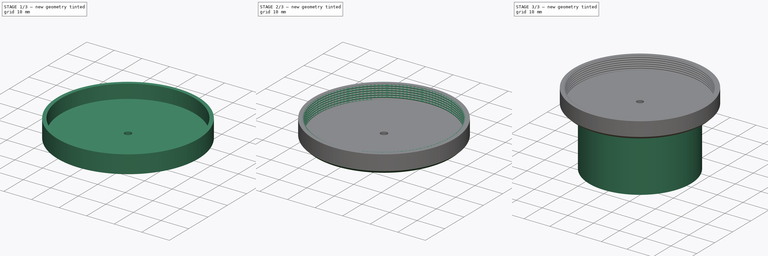
[diagram: build sequence overview — one tinted view per stage of 3, left to right]
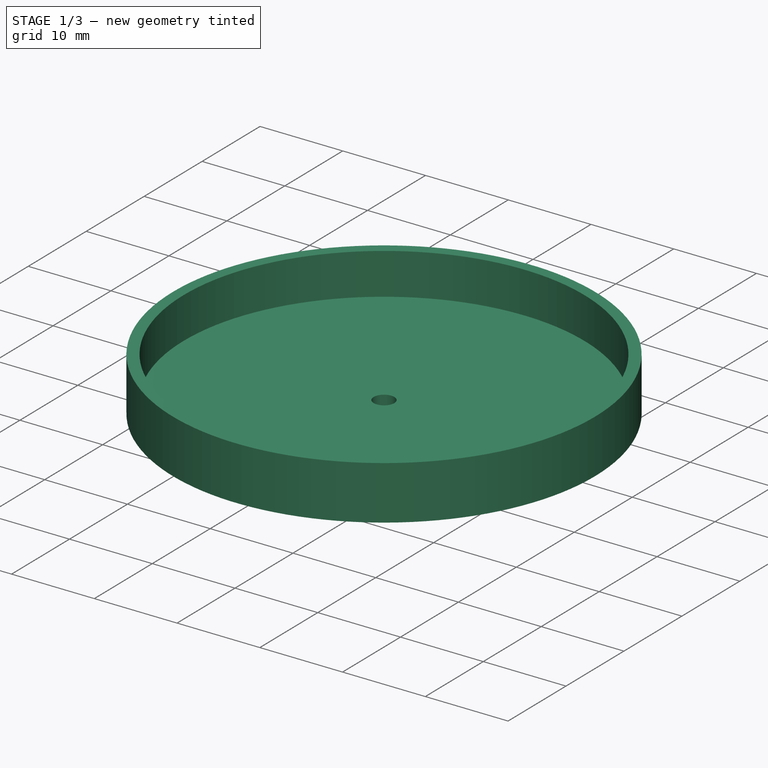
[diagram: stage 1 of 3 — iso view after this stage's code; geometry added in this stage tinted green]
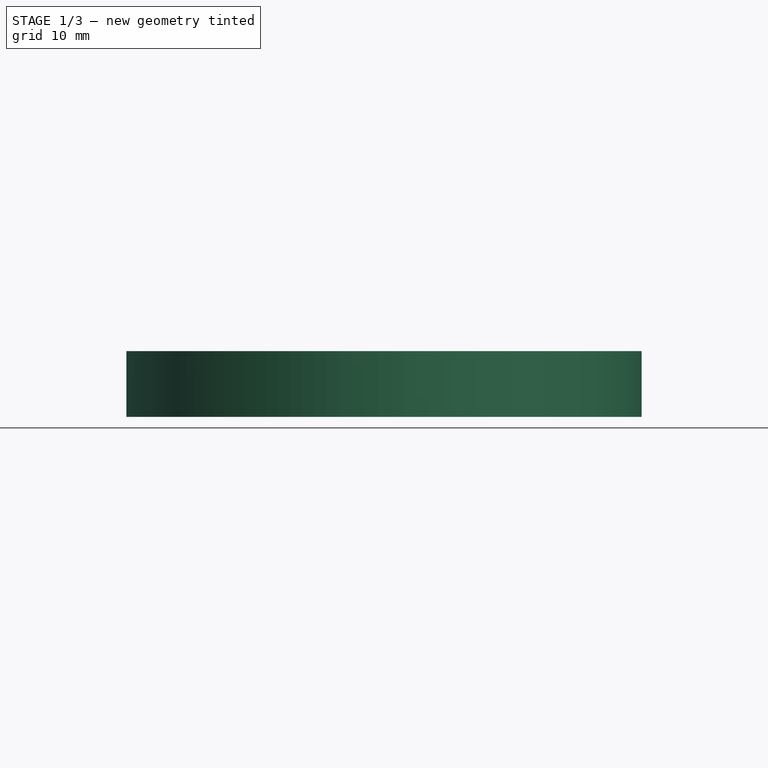
[diagram: stage 1 of 3 — front view after this stage's code; geometry added in this stage tinted green]
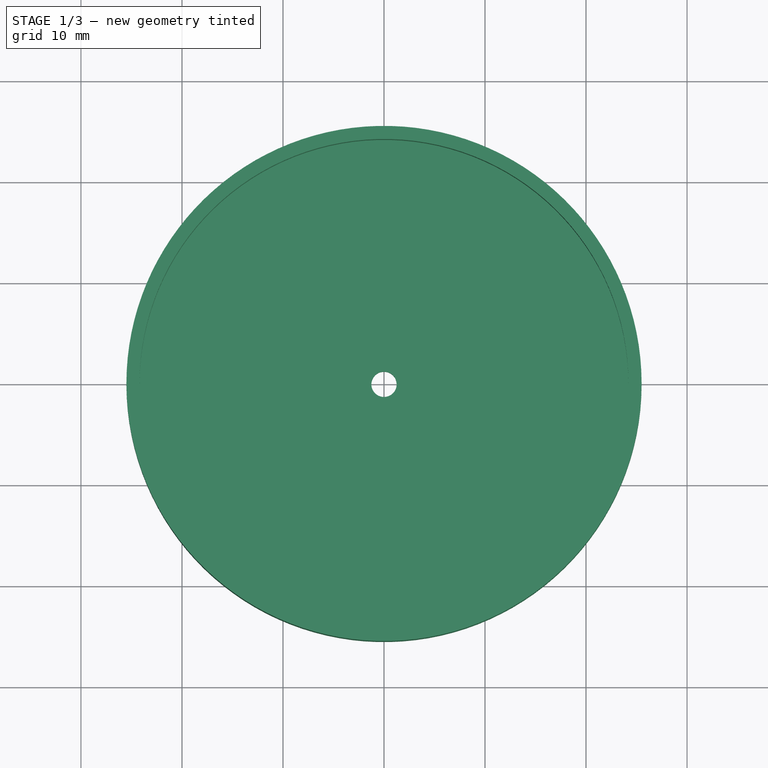
[diagram: stage 1 of 3 — top view after this stage's code; geometry added in this stage tinted green]
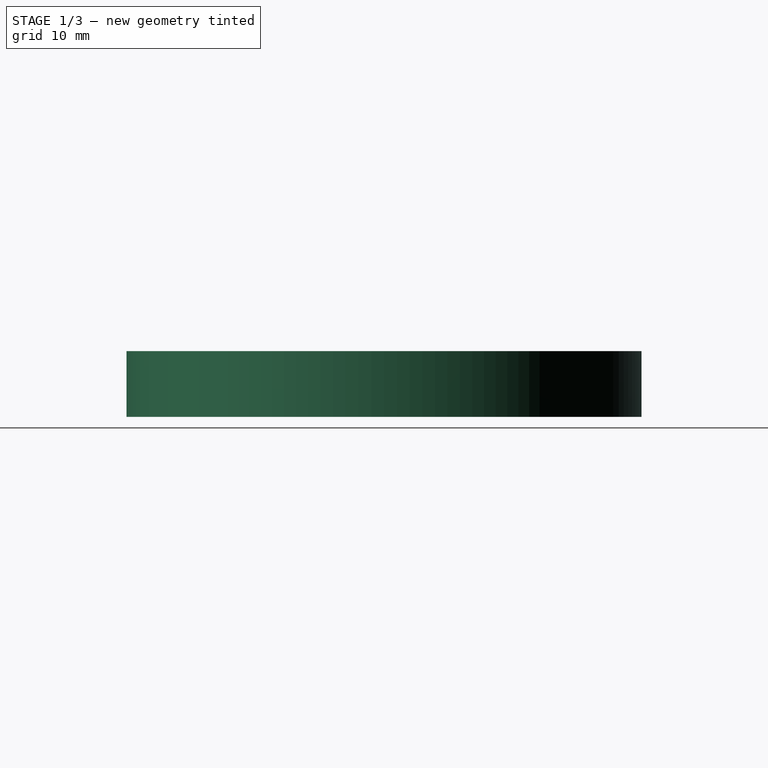
[diagram: stage 1 of 3 — right view after this stage's code; geometry added in this stage tinted green]
FCSTD DOCUMENT  (FreeCAD 0.21R33771 (Git))
Label: M48CollimationCapLens
License: All rights reserved
LicenseURL: https://en.wikipedia.org/wiki/All_rights_reserved
objects: Sketcher::SketchObject×5, PartDesign::Pad×2, PartDesign::Pocket×2, PartDesign::Chamfer×2, Spreadsheet::Sheet×1, PartDesign::AdditiveHelix×1, PartDesign::Body×1
note: 20 computed .brp shape members not serialized (recipe doc carries the construction recipe); baked Part::Feature solids carry a one-line shape summary decoded from their .brp

FEATURE [Sketcher::SketchObject] Sketch
  FullyConstrained = true
  MapMode = 5
  Support = -> [XY_Plane]
  expr: Constraints[1] = <<Parameters>>.Diameter + 2 * <<Parameters>>.Thickness
  expr: Constraints[5] = <<Parameters>>.Pinhole
  sketch-geometry (2):
    g0: Circle CenterX=0 CenterY=0 CenterZ=0 NormalX=0 NormalY=0 NormalZ=1 AngleXU=0 Radius=25.5
    g1: Circle CenterX=0 CenterY=0 CenterZ=0 NormalX=0 NormalY=0 NormalZ=1 AngleXU=0 Radius=1.25
  constraints (6):
    c: Coincident(g0,g-1)
    c: Diameter(g0) = 51
    c: PointOnObject(g1,g-1)
    c: PointOnObject(g1,g-1)
    c: PointOnObject(g1,g-2)
    c: Diameter(g1) = 2.5
FEATURE [Spreadsheet::Sheet] Spreadsheet  label="Parameters"
  cells = A2='Thread Diameter; B2(Diameter)=48; A3='Tolerance; B3(Tolerance)=0.4; A4='Thread Pitch; B4(Pitch)=0.75; A5='Thread Length; B5(Length)=5; A6='Thickness; B6(Thickness)=1.5; A7='Pinhole; B7(Pinhole)=2.5; A8='Lens Diameter; B8(LensDiameter)=36.5; A9='Port Depth; B9(Depth)=22
FEATURE [PartDesign::Pad] Pad
  Direction = (0,0,1)
  Length = 6.5
  Length2 = 10
  Profile = -> Sketch
  ReferenceAxis = -> Sketch [N_Axis]
  Reversed = true
  Type = 0
  expr: Length = <<Parameters>>.Length + <<Parameters>>.Thickness
FEATURE [Sketcher::SketchObject] Sketch001
  FullyConstrained = true
  MapMode = 5
  Support = -> [XY_Plane]
  expr: Constraints[1] = <<Parameters>>.Diameter + <<Parameters>>.Tolerance
  sketch-geometry (1):
    g0: Circle CenterX=0 CenterY=0 CenterZ=0 NormalX=0 NormalY=0 NormalZ=1 AngleXU=0 Radius=24.2
  constraints (2):
    c: Coincident(g0,g-1)
    c: Diameter(g0) = 48.4
FEATURE [PartDesign::Pocket] Pocket
  BaseFeature = -> Pad
  Direction = (0,0,-1)
  Length = 5
  Length2 = 5
  Profile = -> Sketch001
  ReferenceAxis = -> Sketch001 [N_Axis]
  Type = 0
  expr: Length = <<Parameters>>.Length
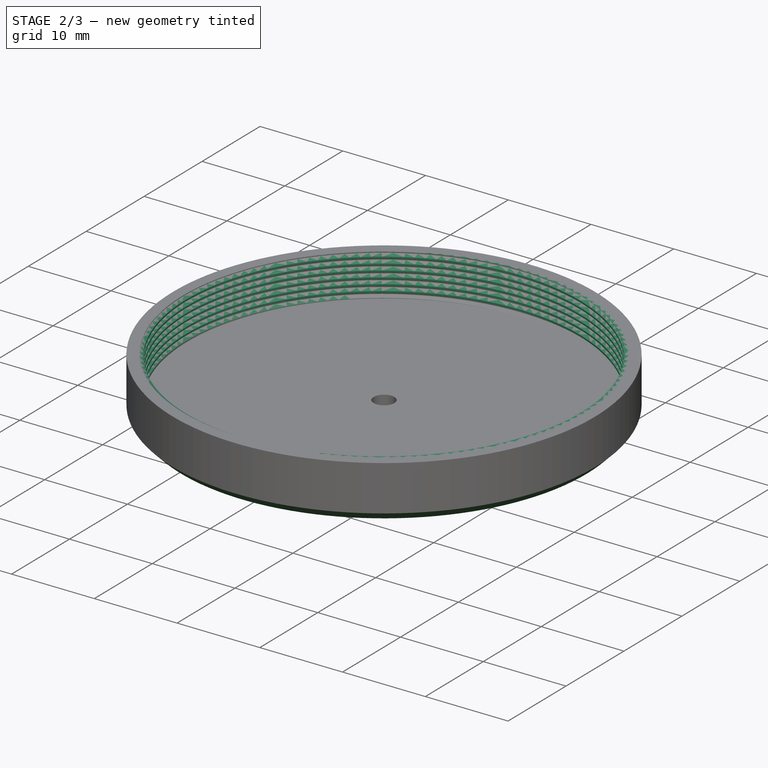
[diagram: stage 2 of 3 — iso view after this stage's code; geometry added in this stage tinted green]
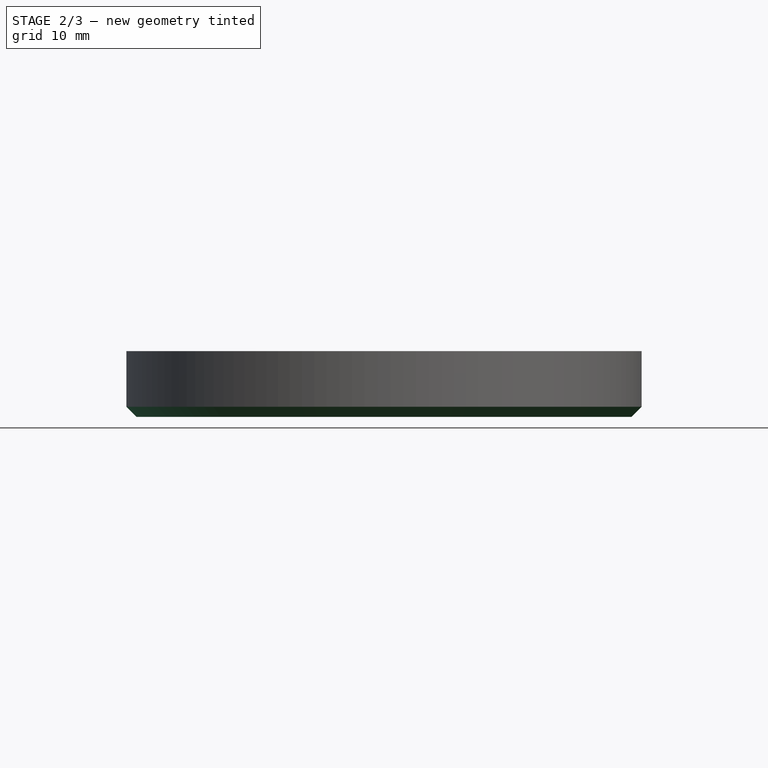
[diagram: stage 2 of 3 — front view after this stage's code; geometry added in this stage tinted green]
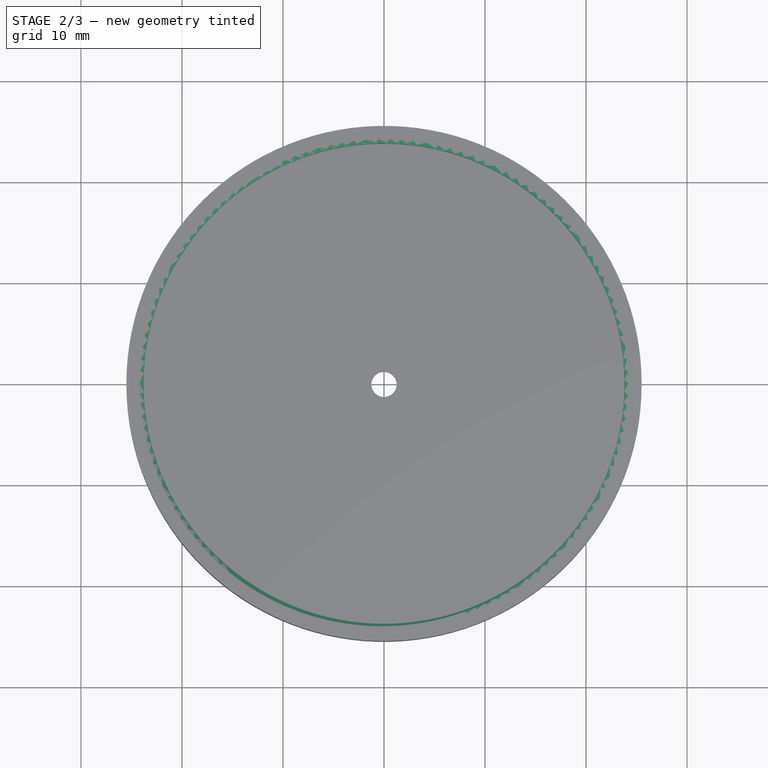
[diagram: stage 2 of 3 — top view after this stage's code; geometry added in this stage tinted green]
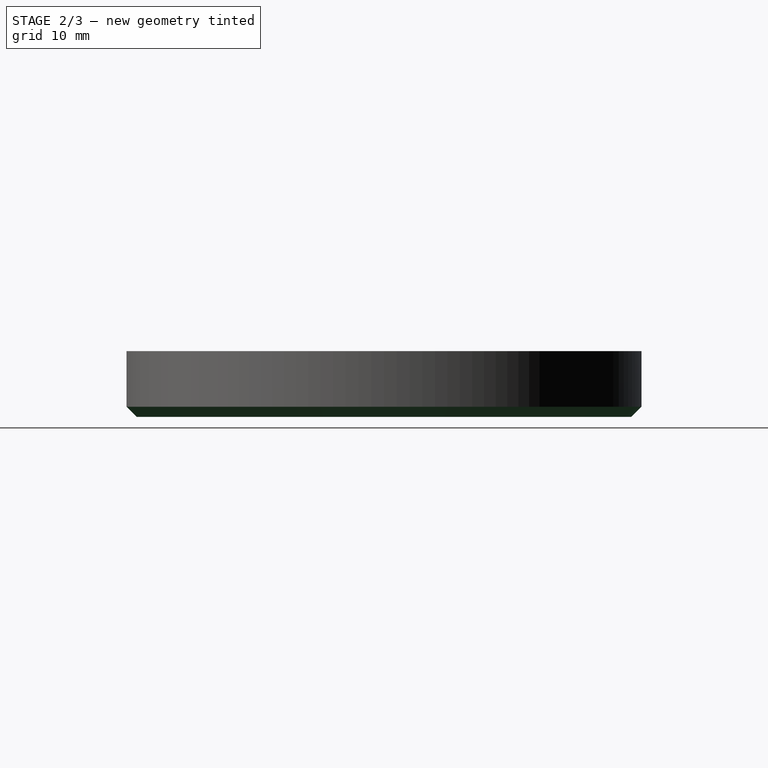
[diagram: stage 2 of 3 — right view after this stage's code; geometry added in this stage tinted green]
FEATURE [Sketcher::SketchObject] Sketch002
  FullyConstrained = true
  MapMode = 5
  Placement = pos=(0,0,0) rot=(1,0,0;1.5708rad)
  Support = -> [XZ_Plane]
  expr: Constraints[11] = (<<Parameters>>.Diameter + <<Parameters>>.Tolerance) / 2
  expr: Constraints[8] = <<Parameters>>.Pitch / 4
  expr: Constraints[9] = 0.866205 * <<Parameters>>.Pitch * 5 / 8
  sketch-geometry (4):
    g0: LineSegment StartX=-24.2 StartY=0 StartZ=0 EndX=-23.794 EndY=0.234424 EndZ=0
    g1: LineSegment StartX=-23.794 StartY=0.234424 StartZ=0 EndX=-23.794 EndY=0.421924 EndZ=0
    g2: LineSegment StartX=-23.794 StartY=0.421924 StartZ=0 EndX=-24.2 EndY=0.656347 EndZ=0
    g3: LineSegment StartX=-24.2 StartY=0.656347 StartZ=0 EndX=-24.2 EndY=0 EndZ=0
  constraints (12):
    c: Coincident(g0,g1)
    c: Vertical(g1)
    c: Coincident(g1,g2)
    c: Coincident(g2,g3)
    c: Coincident(g3,g0)
    c: Vertical(g3)
    c: Angle(g0,g3) = 1.0472
    c: Angle(g3,g2) = 1.0472
    c: DistanceY(g0,g1) = 0.1875
    c: DistanceX(g2,g1) = 0.406034
    c: Horizontal(g-1,g0)
    c: DistanceX(g0,g-1) = 24.2
FEATURE [PartDesign::AdditiveHelix] AdditiveHelix
  Angle = 0
  Axis = (0,-2e-16,1)
  Base = (0,0,0)
  BaseFeature = -> Pocket
  Growth = 0
  HasBeenEdited = true
  Height = 6.5
  LeftHanded = false
  Mode = 0
  Outside = false
  Pitch = 0.75
  Profile = -> Sketch002
  ReferenceAxis = -> Sketch002 [V_Axis]
  Reversed = true
  Turns = 8.66667
  expr: Height = <<Pad>>.Length
  expr: Pitch = <<Parameters>>.Pitch
FEATURE [Sketcher::SketchObject] Sketch003
  ExternalGeometry = -> [AdditiveHelix]
  FullyConstrained = true
  MapMode = 5
  Support = -> [XY_Plane]
  sketch-geometry (1):
    g0: Circle CenterX=0 CenterY=0 CenterZ=0 NormalX=0 NormalY=0 NormalZ=1 AngleXU=0 Radius=25.5
  constraints (2):
    c: Coincident(g0,g-3)
    c: Equal(g-3,g0)
FEATURE [PartDesign::Pocket] Pocket001
  BaseFeature = -> AdditiveHelix
  Direction = (0,0,-1)
  Length = 5
  Length2 = 5
  Profile = -> Sketch003
  ReferenceAxis = -> Sketch003 [N_Axis]
  Reversed = true
  Type = 0
FEATURE [PartDesign::Chamfer] Chamfer
  Angle = 45
  Base = -> Pocket001 [Edge3]
  BaseFeature = -> Pocket001
  ChamferType = 0
  FlipDirection = false
  Size = 1
  Size2 = 1
  SupportTransform = false
  UseAllEdges = false
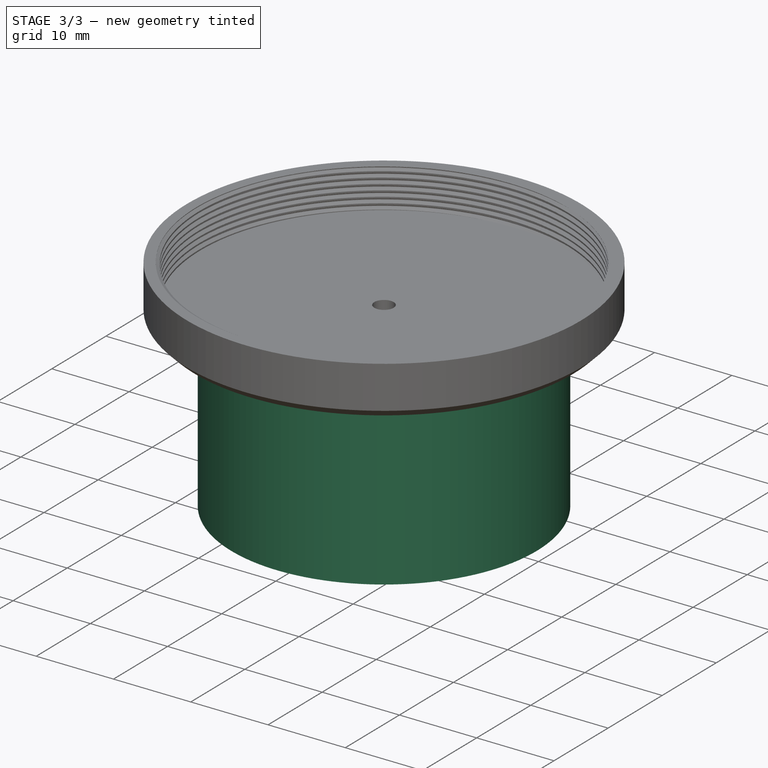
[diagram: stage 3 of 3 — iso view after this stage's code; geometry added in this stage tinted green]
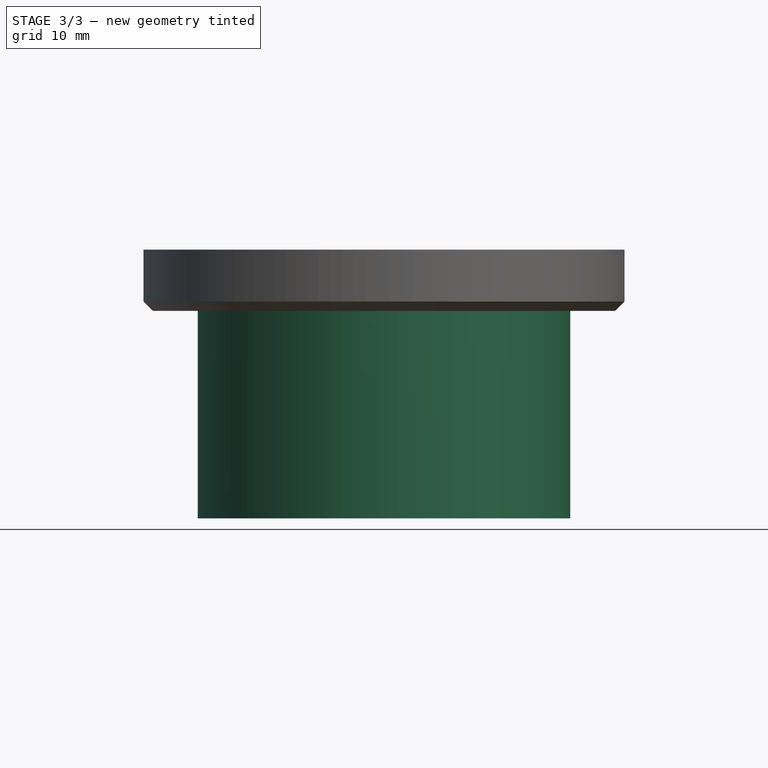
[diagram: stage 3 of 3 — front view after this stage's code; geometry added in this stage tinted green]
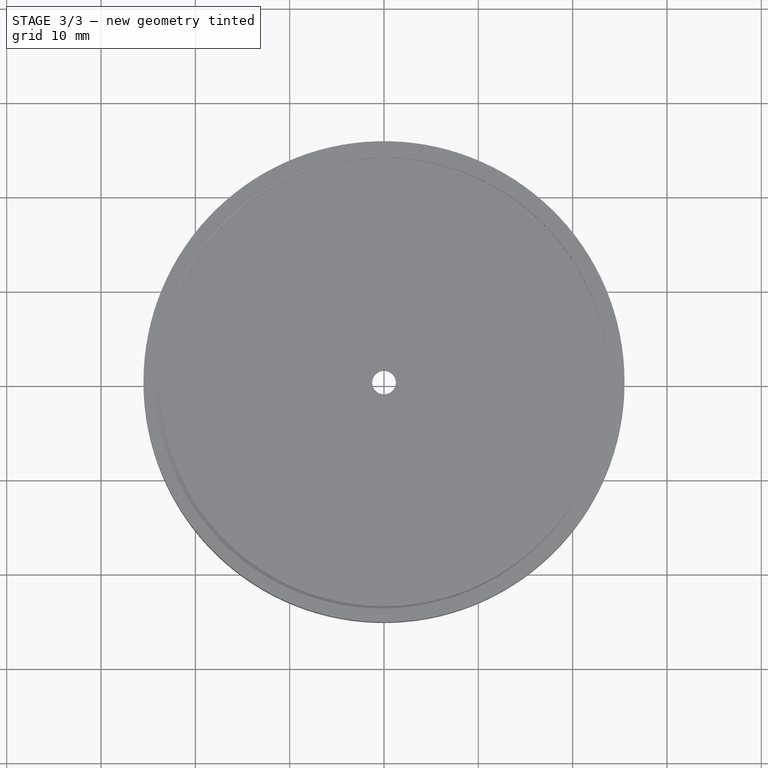
[diagram: stage 3 of 3 — top view after this stage's code; geometry added in this stage tinted green]
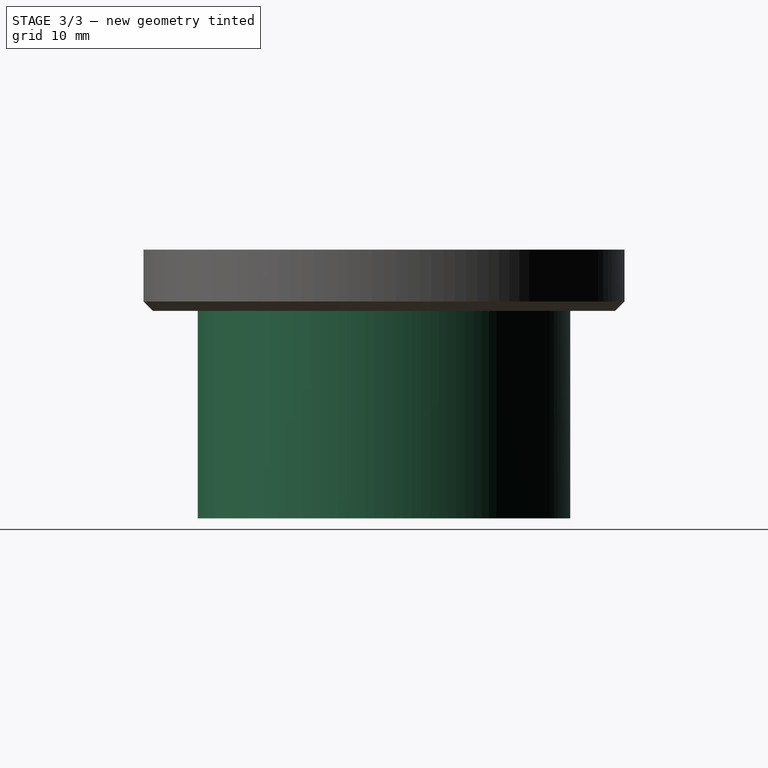
[diagram: stage 3 of 3 — right view after this stage's code; geometry added in this stage tinted green]
FEATURE [Sketcher::SketchObject] Sketch004
  FullyConstrained = true
  MapMode = 5
  Placement = pos=(0,0,-6.5) rot=(1,0,0;3.14159rad)
  Support = -> [Chamfer]
  expr: Constraints[1] = <<Parameters>>.LensDiameter
  expr: Constraints[3] = <<Parameters>>.LensDiameter + 2 * <<Parameters>>.Thickness
  sketch-geometry (2):
    g0: Circle CenterX=0 CenterY=0 CenterZ=0 NormalX=0 NormalY=0 NormalZ=1 AngleXU=0 Radius=18.25
    g1: Circle CenterX=0 CenterY=0 CenterZ=0 NormalX=0 NormalY=0 NormalZ=1 AngleXU=0 Radius=19.75
  constraints (4):
    c: Coincident(g0,g-1)
    c: Diameter(g0) = 36.5
    c: Coincident(g0,g1)
    c: Diameter(g1) = 39.5
FEATURE [PartDesign::Pad] Pad001
  BaseFeature = -> Chamfer
  Direction = (0,0,-1)
  Length = 22
  Length2 = 10
  Profile = -> Sketch004
  ReferenceAxis = -> Sketch004 [N_Axis]
  Refine = true
  Type = 0
  expr: Length = <<Parameters>>.Depth
FEATURE [PartDesign::Chamfer] Chamfer001
  Angle = 45
  Base = -> Pad001 [Edge9]
  BaseFeature = -> Pad001
  ChamferType = 0
  FlipDirection = false
  Refine = true
  Size = 0.5
  Size2 = 1
  SupportTransform = false
  UseAllEdges = false
FEATURE [PartDesign::Body] Body
  Group = -> [Sketch,Pad,Sketch001,Pocket,Sketch002,AdditiveHelix,Sketch003,Pocket001,Chamfer,Sketch004,Pad001,Chamfer001]
  Origin = -> Origin
  Tip = -> Chamfer001
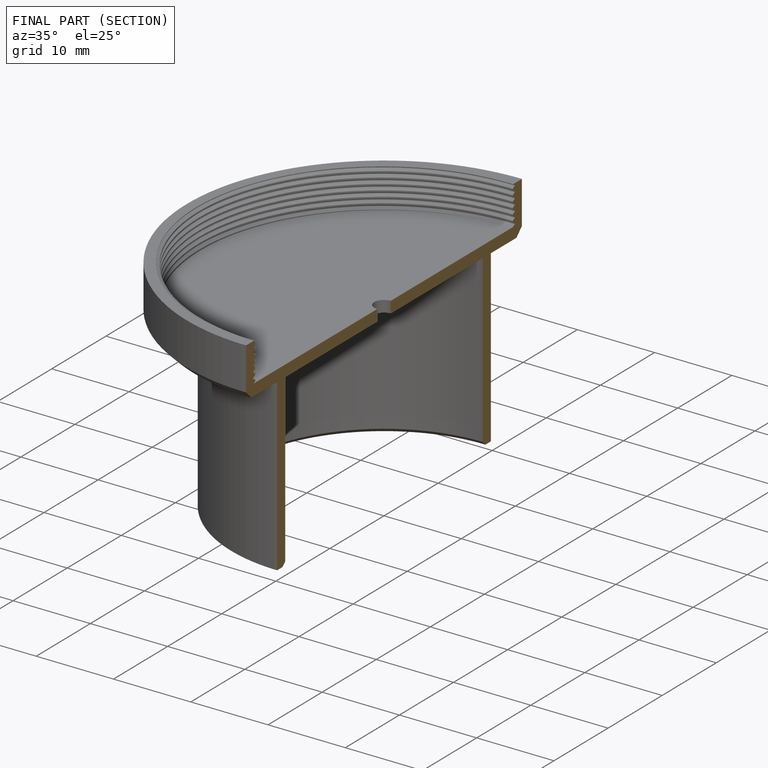
[diagram: finished part — half-section view (interior)]
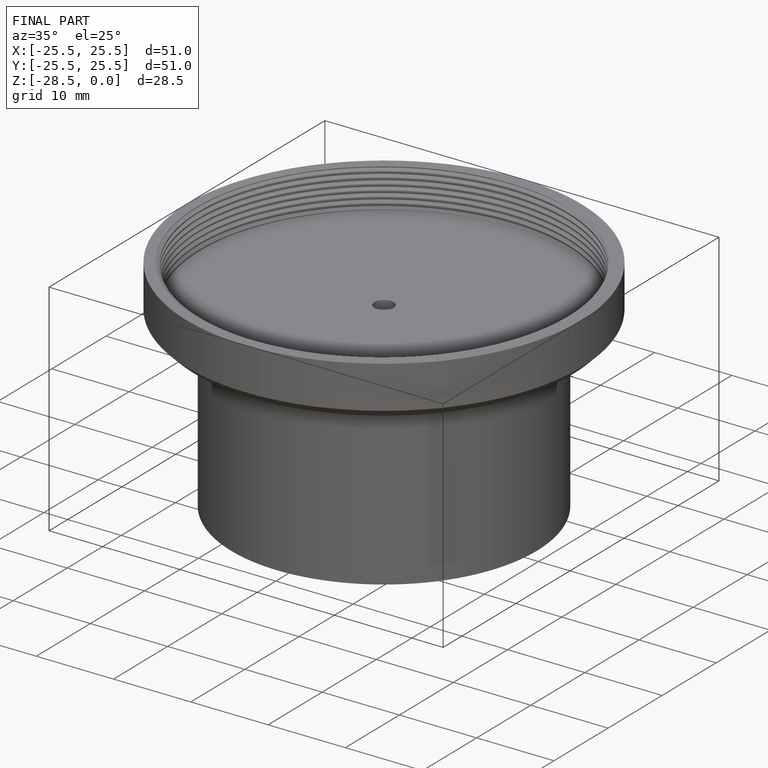
[diagram: finished part — iso view with bounding-box wireframe]
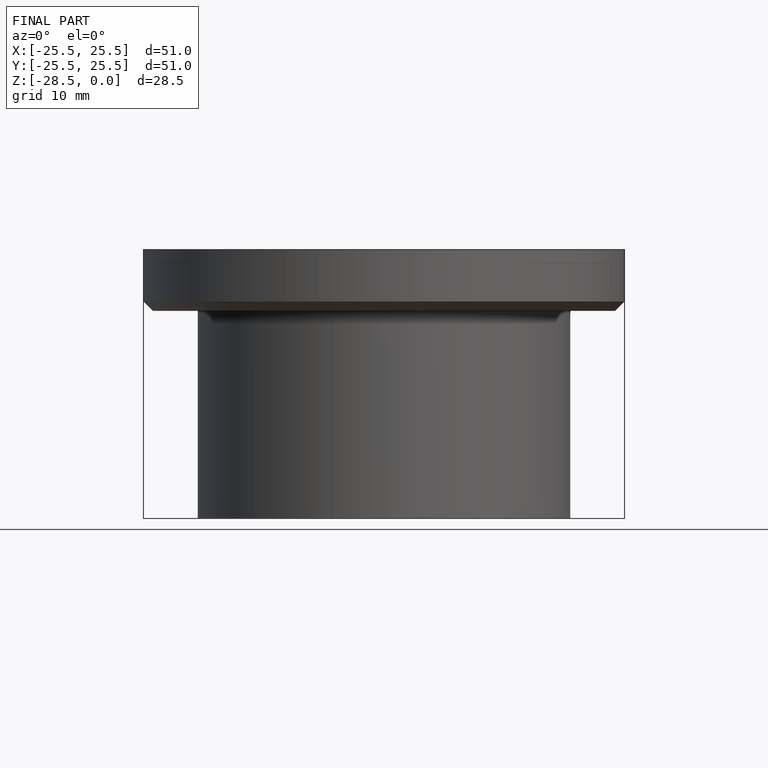
[diagram: finished part — front view with bounding-box wireframe]
